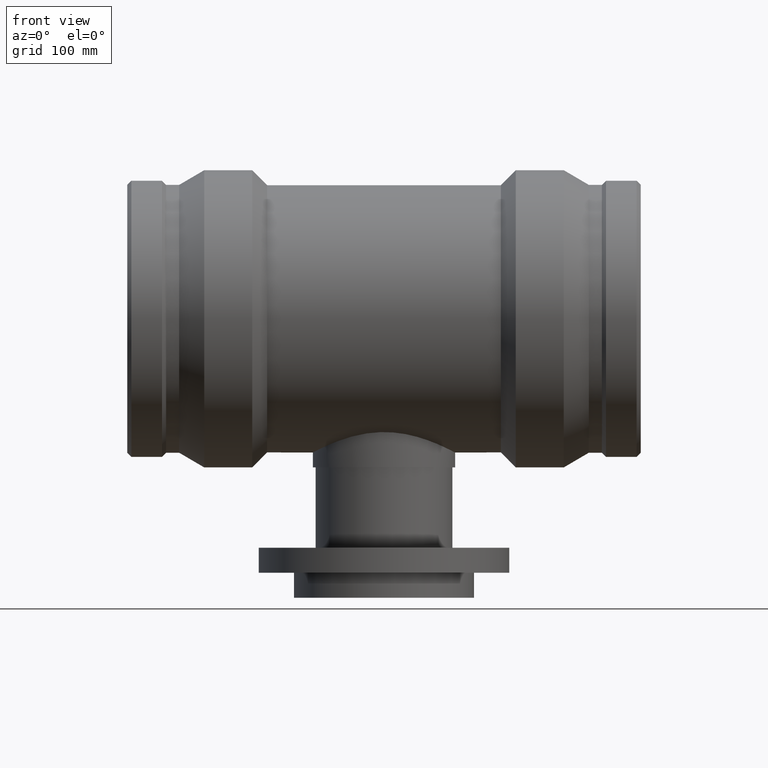
[diagram: clean part render]
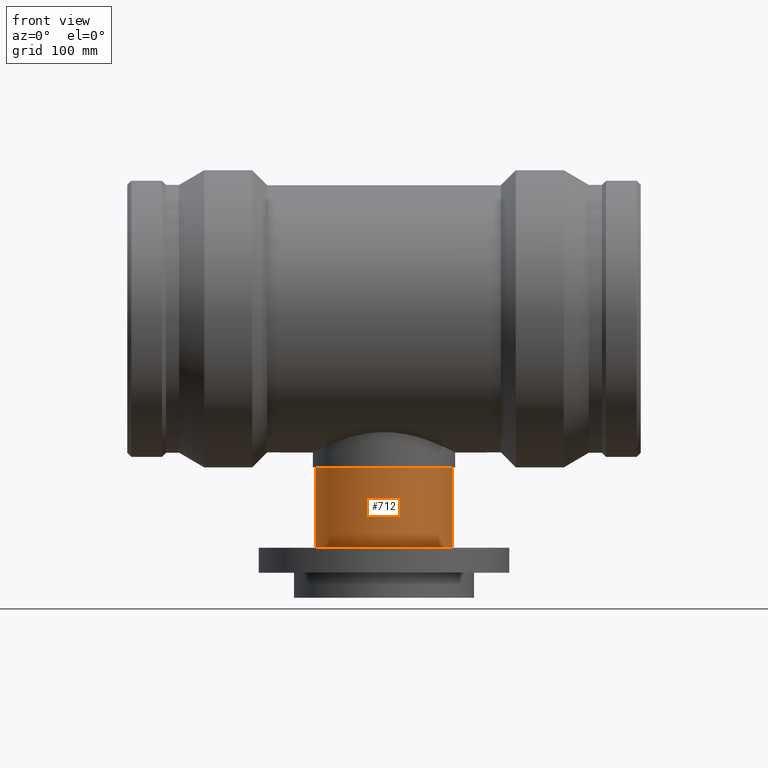
[diagram: same view with one face highlighted and labeled with its STEP entity id]
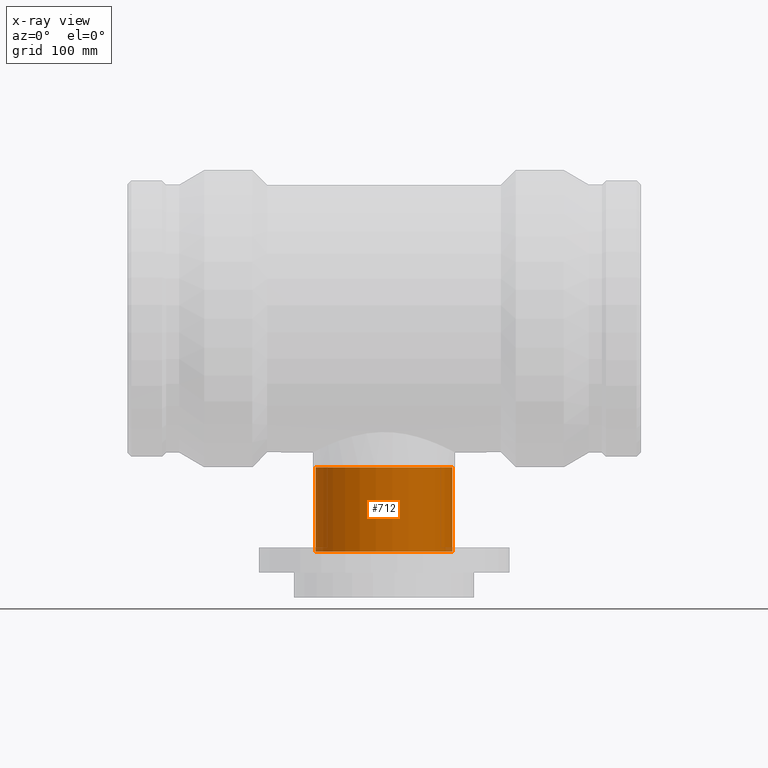
[diagram: x-ray of the same camera — body ghosted, the highlighted face saturated]
A machine part, front view. The second image highlights one B-rep face of the part: STEP entity #712.
The next image is the same camera in x-ray: the body ghosted, the highlighted face saturated — about 0% of this face is hidden behind the body in this view.
In plain terms, the highlighted cylindrical surface (bore or boss wall) has radius 60 mm, axis along (-0, 0, -1).
Its self-contained STEP definition (entity closure, byte-faithful):
#56=FACE_BOUND('',#301,.T.);
#140=CIRCLE('',#792,60.);
#141=CIRCLE('',#794,60.);
#195=CYLINDRICAL_SURFACE('',#793,60.);
#228=FACE_OUTER_BOUND('',#300,.T.);
#300=EDGE_LOOP('',(#586));
#301=EDGE_LOOP('',(#587));
#441=VERTEX_POINT('',#1523);
#442=VERTEX_POINT('',#1526);
#511=EDGE_CURVE('',#441,#441,#140,.T.);
#512=EDGE_CURVE('',#442,#442,#141,.T.);
#586=ORIENTED_EDGE('',*,*,#511,.T.);
#587=ORIENTED_EDGE('',*,*,#512,.F.);
#712=ADVANCED_FACE('',(#228,#56),#195,.T.);
#792=AXIS2_PLACEMENT_3D('',#1524,#949,#950);
#793=AXIS2_PLACEMENT_3D('',#1525,#951,#952);
#794=AXIS2_PLACEMENT_3D('',#1527,#953,#954);
#949=DIRECTION('center_axis',(-1.22464679914735E-16,0.,-1.));
#950=DIRECTION('ref_axis',(1.,0.,-1.22464679914735E-16));
#951=DIRECTION('center_axis',(-1.22464679914735E-16,0.,-1.));
#952=DIRECTION('ref_axis',(-1.,0.,0.));
#953=DIRECTION('center_axis',(-1.22464679914735E-16,0.,-1.));
#954=DIRECTION('ref_axis',(1.,0.,-1.22464679914735E-16));
#1523=CARTESIAN_POINT('',(-60.,0.,-130.5));
#1524=CARTESIAN_POINT('Origin',(-1.5981640728873E-14,0.,-130.5));
#1525=CARTESIAN_POINT('Origin',(-2.05030211559934E-14,0.,-167.419872981078));
#1526=CARTESIAN_POINT('',(-60.,0.,-204.339745962156));
#1527=CARTESIAN_POINT('Origin',(-2.50244015831137E-14,0.,-204.339745962156));